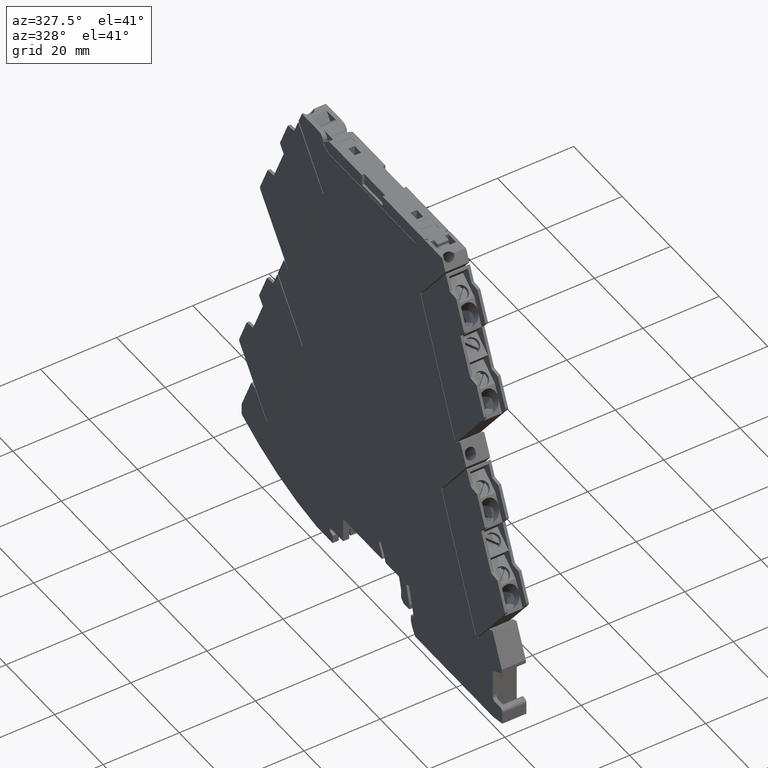
[diagram: clean part render]
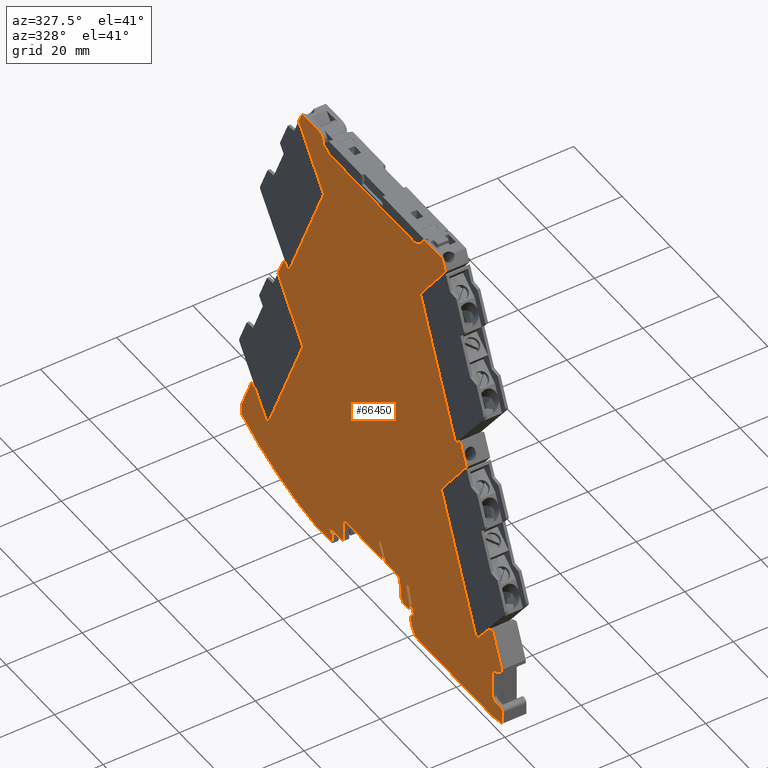
[diagram: same view with one face highlighted and labeled with its STEP entity id]
A machine part, auxiliary view. The second image highlights one B-rep face of the part: STEP entity #66450.
In plain terms, the highlighted planar face has unit normal (-1, -0, 0).
Its self-contained STEP definition (entity closure, byte-faithful):
#60400=CARTESIAN_POINT('',(-25.3383086227346,48.277169045282,
-14.7000000000047));
#60410=DIRECTION('',(-6.05765437811101E-15,0.,-1.));
#60420=DIRECTION('',(-1.,0.,6.05765437811101E-15));
#60430=AXIS2_PLACEMENT_3D('',#60400,#60410,#60420);
#60440=PLANE('',#60430);
#60450=CARTESIAN_POINT('',(36.2007235922513,-1.89731703904989E-13,
-14.6999999993497));
#60460=DIRECTION('',(-1.11019769824654E-16,1.,-4.92867996990879E-28));
#60470=VECTOR('',#60460,1.);
#60480=LINE('',#60450,#60470);
#60490=CARTESIAN_POINT('',(36.2007235922513,107.906773132974,
-14.6999999993497));
#60500=VERTEX_POINT('',#60490);
#60510=CARTESIAN_POINT('',(36.2007235920387,108.40000000015,
-14.6999999993497));
#60520=VERTEX_POINT('',#60510);
#60530=EDGE_CURVE('',#60500,#60520,#60480,.T.);
#60540=ORIENTED_EDGE('',*,*,#60530,.T.);
#60550=CARTESIAN_POINT('',(1.15118559201051,87.6709129337051,
-14.6999999996607));
#60560=DIRECTION('',(-0.866025403785962,-0.499999999997362,
-7.68432686309111E-12));
#60570=VECTOR('',#60560,1.);
#60580=LINE('',#60550,#60570);
#60590=CARTESIAN_POINT('',(33.8507235915967,106.55000000001,
-14.6999999993705));
#60600=VERTEX_POINT('',#60590);
#60610=EDGE_CURVE('',#60500,#60600,#60580,.T.);
#60620=ORIENTED_EDGE('',*,*,#60610,.F.);
#60630=CARTESIAN_POINT('',(1.1511855920105,106.550000000109,
-14.6999999996607));
#60640=DIRECTION('',(1.,-3.03140845380314E-12,8.87306795638251E-12));
#60650=VECTOR('',#60640,1.);
#60660=LINE('',#60630,#60650);
#60670=CARTESIAN_POINT('',(-1.84927640837506,106.550000000118,
-14.6999999996873));
#60680=VERTEX_POINT('',#60670);
#60690=EDGE_CURVE('',#60680,#60600,#60660,.T.);
#60700=ORIENTED_EDGE('',*,*,#60690,.T.);
#60710=CARTESIAN_POINT('',(1.1511855920105,104.81768245649,
-14.6999999996607));
#60720=DIRECTION('',(0.86602540378293,-0.500000000002612,
7.68429910748884E-12));
#60730=VECTOR('',#60720,1.);
#60740=LINE('',#60710,#60730);
#60750=CARTESIAN_POINT('',(-4.69927640812043,108.195448267173,
-14.6999999997126));
#60760=VERTEX_POINT('',#60750);
#60770=EDGE_CURVE('',#60760,#60680,#60740,.T.);
#60780=ORIENTED_EDGE('',*,*,#60770,.T.);
#60790=CARTESIAN_POINT('',(-4.69927640844843,-1.94272412430663E-13,
-14.6999999997126));
#60800=DIRECTION('',(3.03146968213903E-12,1.,2.68987533309253E-23));
#60810=VECTOR('',#60800,1.);
#60820=LINE('',#60790,#60810);
#60830=CARTESIAN_POINT('',(-4.69927640811981,108.400000000278,
-14.6999999997126));
#60840=VERTEX_POINT('',#60830);
#60850=EDGE_CURVE('',#60760,#60840,#60820,.T.);
#60860=ORIENTED_EDGE('',*,*,#60850,.F.);
#60870=CARTESIAN_POINT('',(-6.49927640811981,108.400000000268,
-14.6999999997286));
#60880=DIRECTION('',(-8.8791256107606E-12,6.49014673646118E-15,1.));
#60890=DIRECTION('',(-1.,-1.11022236331463E-16,-8.8791256107606E-12));
#60900=AXIS2_PLACEMENT_3D('',#60870,#60880,#60890);
#60910=CIRCLE('',#60900,1.8);
#60920=CARTESIAN_POINT('',(-6.49927640811436,110.200000000268,
-14.6999999997286));
#60930=VERTEX_POINT('',#60920);
#60940=EDGE_CURVE('',#60840,#60930,#60910,.T.);
#60950=ORIENTED_EDGE('',*,*,#60940,.F.);
#60960=CARTESIAN_POINT('',(1.1511855920105,110.199999999996,
-14.6999999996607));
#60970=DIRECTION('',(1.,1.11022302260079E-16,8.87306795638251E-12));
#60980=VECTOR('',#60970,1.);
#60990=LINE('',#60960,#60980);
#61000=CARTESIAN_POINT('',(-12.8970555814496,110.199999999919,
-14.6999999997853));
#61010=VERTEX_POINT('',#61000);
#61020=EDGE_CURVE('',#61010,#60930,#60990,.T.);
#61030=ORIENTED_EDGE('',*,*,#61020,.T.);
#61040=CARTESIAN_POINT('',(-60.8133793021392,-2.00502187135201E-13,
-14.7000000002105));
#61050=DIRECTION('',(0.398749068924771,0.91706007438533,
3.53813722846408E-12));
#61060=VECTOR('',#61050,1.);
#61070=LINE('',#61040,#61060);
#61080=CARTESIAN_POINT('',(-14.2517103911261,107.084507232027,
-14.6999999997974));
#61090=VERTEX_POINT('',#61080);
#61100=EDGE_CURVE('',#61090,#61010,#61070,.T.);
#61110=ORIENTED_EDGE('',*,*,#61100,.T.);
#61120=CARTESIAN_POINT('',(64.9866566975938,1.24160697329902E-14,
-14.6999999990943));
#61130=DIRECTION('',(-0.594822786743645,0.803856860622912,
-5.27789801480947E-12));
#61140=VECTOR('',#61130,1.);
#61150=LINE('',#61120,#61140);
#61160=CARTESIAN_POINT('',(-3.94907750984252,93.1612979860632,
-14.6999999997059));
#61170=VERTEX_POINT('',#61160);
#61180=EDGE_CURVE('',#61170,#61090,#61150,.T.);
#61190=ORIENTED_EDGE('',*,*,#61180,.T.);
#61200=CARTESIAN_POINT('',(-22.2813318271359,50.9999995197639,
-14.6999999998689));
#61210=DIRECTION('',(0.398749068924602,0.917060074385404,
3.53810057950121E-12));
#61220=VECTOR('',#61210,1.);
#61230=LINE('',#61200,#61220);
#61240=CARTESIAN_POINT('',(-17.9964898335526,60.8544614448102,
-14.6999999998306));
#61250=VERTEX_POINT('',#61240);
#61260=EDGE_CURVE('',#61250,#61170,#61230,.T.);
#61270=ORIENTED_EDGE('',*,*,#61260,.T.);
#61280=CARTESIAN_POINT('',(0.943563592012233,75.1268151745857,
-14.6999999996625));
#61290=DIRECTION('',(0.798635514844872,0.601815016785445,
7.08632782778937E-12));
#61300=VECTOR('',#61290,1.);
#61310=LINE('',#61280,#61300);
#61320=CARTESIAN_POINT('',(-18.7951253487686,60.2526464262474,
-14.6999999998377));
#61330=VERTEX_POINT('',#61320);
#61340=EDGE_CURVE('',#61330,#61250,#61310,.T.);
#61350=ORIENTED_EDGE('',*,*,#61340,.T.);
#61360=CARTESIAN_POINT('',(27.4383555881092,-1.90704499971024E-13,
-14.6999999994274));
#61370=DIRECTION('',(-0.608761422684226,0.79335334514419,
-5.40160933601868E-12));
#61380=VECTOR('',#61370,1.);
#61390=LINE('',#61360,#61380);
#61400=CARTESIAN_POINT('',(-19.6188566543151,61.3261539817586,
-14.699999999845));
#61410=VERTEX_POINT('',#61400);
#61420=EDGE_CURVE('',#61330,#61410,#61390,.T.);
#61430=ORIENTED_EDGE('',*,*,#61420,.F.);
#61440=CARTESIAN_POINT('',(0.943563592012235,52.8089204484699,
-14.6999999996625));
#61450=DIRECTION('',(0.923879529460593,-0.382683439730116,
8.19766352059228E-12));
#61460=VECTOR('',#61450,1.);
#61470=LINE('',#61440,#61460);
#61480=CARTESIAN_POINT('',(-20.4270229817666,61.6609074427902,
-14.6999999998522));
#61490=VERTEX_POINT('',#61480);
#61500=EDGE_CURVE('',#61490,#61410,#61470,.T.);
#61510=ORIENTED_EDGE('',*,*,#61500,.T.);
#61520=CARTESIAN_POINT('',(-47.2379485891593,-4.30799493391948E-17,
-14.7000000000901));
#61530=DIRECTION('',(0.39874906892458,0.917060074385414,
3.53810057950102E-12));
#61540=VECTOR('',#61530,1.);
#61550=LINE('',#61520,#61540);
#61560=CARTESIAN_POINT('',(-22.8222550002266,56.1522509362226,
-14.6999999998734));
#61570=VERTEX_POINT('',#61560);
#61580=EDGE_CURVE('',#61570,#61490,#61550,.T.);
#61590=ORIENTED_EDGE('',*,*,#61580,.T.);
#61600=CARTESIAN_POINT('',(-22.8222550002266,-1.96284421315771E-13,
-14.6999999998734));
#61610=DIRECTION('',(-3.69141078538322E-41,1.,4.92212777642609E-28));
#61620=VECTOR('',#61610,1.);
#61630=LINE('',#61600,#61620);
#61640=CARTESIAN_POINT('',(-22.8222550002266,56.0447007672601,
-14.6999999998734));
#61650=VERTEX_POINT('',#61640);
#61660=EDGE_CURVE('',#61650,#61570,#61630,.T.);
#61670=ORIENTED_EDGE('',*,*,#61660,.T.);
#61680=CARTESIAN_POINT('',(18.6486420283348,7.27163407851774E-15,
-14.6999999995054));
#61690=DIRECTION('',(-0.594822786743645,0.803856860622912,
-5.27789801480947E-12));
#61700=VECTOR('',#61690,1.);
#61710=LINE('',#61680,#61700);
#61720=CARTESIAN_POINT('',(-12.5490777099876,42.1612984679579,
-14.6999999997823));
#61730=VERTEX_POINT('',#61720);
#61740=EDGE_CURVE('',#61730,#61650,#61710,.T.);
#61750=ORIENTED_EDGE('',*,*,#61740,.T.);
#61760=CARTESIAN_POINT('',(-30.881332028242,1.77282783227625E-15,
-14.6999999999449));
#61770=DIRECTION('',(0.398749068924602,0.917060074385404,
3.53810057950121E-12));
#61780=VECTOR('',#61770,1.);
#61790=LINE('',#61760,#61780);
#61800=CARTESIAN_POINT('',(-26.5964900346587,9.85446192504636,
-14.6999999999069));
#61810=VERTEX_POINT('',#61800);
#61820=EDGE_CURVE('',#61810,#61730,#61790,.T.);
#61830=ORIENTED_EDGE('',*,*,#61820,.T.);
#61840=CARTESIAN_POINT('',(0.943563592012237,30.6073805311242,
-14.6999999996625));
#61850=DIRECTION('',(0.798635514844872,0.601815016785445,
7.08632782778937E-12));
#61860=VECTOR('',#61850,1.);
#61870=LINE('',#61840,#61860);
#61880=CARTESIAN_POINT('',(-27.3951255491828,9.25264690850264,
-14.699999999914));
#61890=VERTEX_POINT('',#61880);
#61900=EDGE_CURVE('',#61890,#61810,#61870,.T.);
#61910=ORIENTED_EDGE('',*,*,#61900,.T.);
#61920=CARTESIAN_POINT('',(-20.2953199832388,-1.96003881575544E-13,
-14.699999999851));
#61930=DIRECTION('',(-0.608761422684226,0.79335334514419,
-5.40160933601868E-12));
#61940=VECTOR('',#61930,1.);
#61950=LINE('',#61920,#61940);
#61960=CARTESIAN_POINT('',(-32.099129865832,15.3830247891033,
-14.6999999999557));
#61970=VERTEX_POINT('',#61960);
#61980=EDGE_CURVE('',#61890,#61970,#61950,.T.);
#61990=ORIENTED_EDGE('',*,*,#61980,.F.);
#62000=CARTESIAN_POINT('',(0.94356359201224,1.69629271292179,
-14.6999999996625));
#62010=DIRECTION('',(0.923879529460592,-0.382683439730119,
8.19763576501666E-12));
#62020=VECTOR('',#62010,1.);
#62030=LINE('',#62000,#62020);
#62040=CARTESIAN_POINT('',(-33.7154625217472,16.0525317115858,
-14.6999999999701));
#62050=VERTEX_POINT('',#62040);
#62060=EDGE_CURVE('',#62050,#61970,#62030,.T.);
#62070=ORIENTED_EDGE('',*,*,#62060,.T.);
#62080=CARTESIAN_POINT('',(-40.6953019802847,6.83283161587036E-16,
-14.700000000032));
#62090=DIRECTION('',(0.398749069928776,0.917060073948777,
3.5381005884174E-12));
#62100=VECTOR('',#62090,1.);
#62110=LINE('',#62080,#62100);
#62120=CARTESIAN_POINT('',(-37.4826881751927,7.38850589467894,
-14.7000000000035));
#62130=VERTEX_POINT('',#62120);
#62140=EDGE_CURVE('',#62130,#62050,#62110,.T.);
#62150=ORIENTED_EDGE('',*,*,#62140,.T.);
#62160=CARTESIAN_POINT('',(-37.4826881751927,-1.97912019210795E-13,
-14.7000000000035));
#62170=DIRECTION('',(-3.69141078538322E-41,1.,4.92212777642609E-28));
#62180=VECTOR('',#62170,1.);
#62190=LINE('',#62160,#62180);
#62200=CARTESIAN_POINT('',(-37.4826881751927,6.44608521200861,
-14.7000000000035));
#62210=VERTEX_POINT('',#62200);
#62220=EDGE_CURVE('',#62210,#62130,#62190,.T.);
#62230=ORIENTED_EDGE('',*,*,#62220,.T.);
#62240=CARTESIAN_POINT('',(0.943563592012242,-15.7393215897355,
-14.6999999996625));
#62250=DIRECTION('',(-0.866025403784439,0.5,-7.68427478294475E-12));
#62260=VECTOR('',#62250,1.);
#62270=LINE('',#62240,#62260);
#62280=CARTESIAN_POINT('',(-33.7492764080437,4.29059892324941,
-14.6999999999704));
#62290=VERTEX_POINT('',#62280);
#62300=EDGE_CURVE('',#62290,#62210,#62270,.T.);
#62310=ORIENTED_EDGE('',*,*,#62300,.T.);
#62320=CARTESIAN_POINT('',(-33.7492764080437,1.45442931158427E-15,
-14.6999999999704));
#62330=DIRECTION('',(-1.11022302459215E-16,1.,-4.92890469345861E-28));
#62340=VECTOR('',#62330,1.);
#62350=LINE('',#62320,#62340);
#62360=CARTESIAN_POINT('',(-33.7492764080437,-3.05673846836056,
-14.6999999999704));
#62370=VERTEX_POINT('',#62360);
#62380=EDGE_CURVE('',#62370,#62290,#62350,.T.);
#62390=ORIENTED_EDGE('',*,*,#62380,.T.);
#62400=CARTESIAN_POINT('',(-34.7492764080437,-3.05673846836056,
-14.6999999999792));
#62410=DIRECTION('',(8.87912561076062E-12,-6.5458857184369E-15,-1.));
#62420=DIRECTION('',(1.11022302401093E-16,-1.,6.54588571843789E-15));
#62430=AXIS2_PLACEMENT_3D('',#62400,#62410,#62420);
#62440=CIRCLE('',#62430,1.);
#62450=CARTESIAN_POINT('',(-34.7492764080437,-4.05673846836056,
-14.6999999999792));
#62460=VERTEX_POINT('',#62450);
#62470=EDGE_CURVE('',#62370,#62460,#62440,.T.);
#62480=ORIENTED_EDGE('',*,*,#62470,.F.);
#62490=CARTESIAN_POINT('',(0.943563592012241,-4.05673846836056,
-14.6999999996625));
#62500=DIRECTION('',(1.,1.11022302459176E-16,8.87306795638251E-12));
#62510=VECTOR('',#62500,1.);
#62520=LINE('',#62490,#62510);
#62530=CARTESIAN_POINT('',(-36.7492764080437,-4.05673846836056,
-14.699999999997));
#62540=VERTEX_POINT('',#62530);
#62550=EDGE_CURVE('',#62540,#62460,#62520,.T.);
#62560=ORIENTED_EDGE('',*,*,#62550,.T.);
#62570=CARTESIAN_POINT('',(-36.7492764080437,-5.05673846836056,
-14.699999999997));
#62580=DIRECTION('',(8.87912561076062E-12,-6.5458857184369E-15,-1.));
#62590=DIRECTION('',(-1.,-1.11022302459215E-16,-8.87912561076062E-12));
#62600=AXIS2_PLACEMENT_3D('',#62570,#62580,#62590);
#62610=CIRCLE('',#62600,1.);
#62620=CARTESIAN_POINT('',(-37.7492764080437,-5.05673846836056,
-14.7000000000059));
#62630=VERTEX_POINT('',#62620);
#62640=EDGE_CURVE('',#62630,#62540,#62610,.T.);
#62650=ORIENTED_EDGE('',*,*,#62640,.T.);
#62660=CARTESIAN_POINT('',(-37.7492764080437,1.01035023817628E-15,
-14.7000000000059));
#62670=DIRECTION('',(-5.55111512279573E-17,1.,-3.35882182301169E-31));
#62680=VECTOR('',#62670,1.);
#62690=LINE('',#62660,#62680);
#62700=CARTESIAN_POINT('',(-37.7492764080438,-8.19999999999219,
-14.7000000000059));
#62710=VERTEX_POINT('',#62700);
#62720=EDGE_CURVE('',#62710,#62630,#62690,.T.);
#62730=ORIENTED_EDGE('',*,*,#62720,.T.);
#62740=CARTESIAN_POINT('',(0.943563592012242,-16.3458610526358,
-14.6999999996625));
#62750=DIRECTION('',(-0.978549784986748,0.206010481049847,
-8.6827406418862E-12));
#62760=VECTOR('',#62750,1.);
#62770=LINE('',#62740,#62760);
#62780=CARTESIAN_POINT('',(-33.9492764080469,-8.99999999999157,
-14.6999999999721));
#62790=VERTEX_POINT('',#62780);
#62800=EDGE_CURVE('',#62790,#62710,#62770,.T.);
#62810=ORIENTED_EDGE('',*,*,#62800,.T.);
#62820=CARTESIAN_POINT('',(0.943563592012242,-8.99999999999158,
-14.6999999996625));
#62830=DIRECTION('',(-1.,-5.38540795371444E-26,-8.87306795638251E-12));
#62840=VECTOR('',#62830,1.);
#62850=LINE('',#62820,#62840);
#62860=CARTESIAN_POINT('',(-1.8164198256342,-8.99999999999158,
-14.6999999996869));
#62870=VERTEX_POINT('',#62860);
#62880=EDGE_CURVE('',#62870,#62790,#62850,.T.);
#62890=ORIENTED_EDGE('',*,*,#62880,.T.);
#62900=CARTESIAN_POINT('',(-9.09927640804742,-2.89999999999157,
-14.6999999997516));
#62910=DIRECTION('',(-8.87912561076062E-12,6.5458857184369E-15,1.));
#62920=DIRECTION('',(1.,-3.30054472363818E-27,8.87912561076062E-12));
#62930=AXIS2_PLACEMENT_3D('',#62900,#62910,#62920);
#62940=CIRCLE('',#62930,9.49999999999998);
#62950=CARTESIAN_POINT('',(0.000723591952494024,-5.62763633938898,
-14.6999999996708));
#62960=VERTEX_POINT('',#62950);
#62970=EDGE_CURVE('',#62870,#62960,#62940,.T.);
#62980=ORIENTED_EDGE('',*,*,#62970,.F.);
#62990=CARTESIAN_POINT('',(0.000723591952495134,5.20134649346369E-15,
-14.6999999996709));
#63000=DIRECTION('',(5.55111512279573E-17,-1.,3.35882182301258E-31));
#63010=VECTOR('',#63000,1.);
#63020=LINE('',#62990,#63010);
#63030=CARTESIAN_POINT('',(0.000723591952495356,-4.01794919242248,
-14.6999999996709));
#63040=VERTEX_POINT('',#63030);
#63050=EDGE_CURVE('',#63040,#62960,#63020,.T.);
#63060=ORIENTED_EDGE('',*,*,#63050,.T.);
#63070=CARTESIAN_POINT('',(0.943563592012241,-4.27058240903025,
-14.6999999996625));
#63080=DIRECTION('',(0.965925826289068,-0.25881904510252,
8.57073419363129E-12));
#63090=VECTOR('',#63080,1.);
#63100=LINE('',#63070,#63090);
#63110=CARTESIAN_POINT('',(-0.999276408047306,-3.74999999999141,
-14.6999999996798));
#63120=VERTEX_POINT('',#63110);
#63130=EDGE_CURVE('',#63120,#63040,#63100,.T.);
#63140=ORIENTED_EDGE('',*,*,#63130,.T.);
#63150=CARTESIAN_POINT('',(-0.999276408047306,5.09032672511172E-15,
-14.6999999996798));
#63160=DIRECTION('',(1.11022302459215E-16,-1.,4.92890469345861E-28));
#63170=VECTOR('',#63160,1.);
#63180=LINE('',#63150,#63170);
#63190=CARTESIAN_POINT('',(-0.999276408047306,-2.79999999999159,
-14.6999999996798));
#63200=VERTEX_POINT('',#63190);
#63210=EDGE_CURVE('',#63200,#63120,#63180,.T.);
#63220=ORIENTED_EDGE('',*,*,#63210,.T.);
#63230=CARTESIAN_POINT('',(-0.287005759605487,5.16940284750564E-15,
-14.6999999996735));
#63240=DIRECTION('',(-0.246530848359328,-0.969134944580594,
-2.1874656906388E-12));
#63250=VECTOR('',#63240,1.);
#63260=LINE('',#63230,#63250);
#63270=CARTESIAN_POINT('',(0.605938711461556,3.51024505144192,
-14.6999999996655));
#63280=VERTEX_POINT('',#63270);
#63290=EDGE_CURVE('',#63280,#63200,#63260,.T.);
#63300=ORIENTED_EDGE('',*,*,#63290,.T.);
#63310=CARTESIAN_POINT('',(1.23587642543894,3.35000000000835,
-14.6999999996599));
#63320=DIRECTION('',(8.87912561076062E-12,-6.5458857184369E-15,-1.));
#63330=DIRECTION('',(-1.,-1.11022302459215E-16,-8.87912561076062E-12));
#63340=AXIS2_PLACEMENT_3D('',#63310,#63320,#63330);
#63350=CIRCLE('',#63340,0.65);
#63360=CARTESIAN_POINT('',(1.86337090583075,3.18043975384843,
-14.6999999996544));
#63370=VERTEX_POINT('',#63360);
#63380=EDGE_CURVE('',#63280,#63370,#63350,.T.);
#63390=ORIENTED_EDGE('',*,*,#63380,.F.);
#63400=CARTESIAN_POINT('',(1.00395912706452,5.31272547017431E-15,
-14.699999999662));
#63410=DIRECTION('',(0.260861917169191,0.965376123679685,
2.31461590622338E-12));
#63420=VECTOR('',#63410,1.);
#63430=LINE('',#63400,#63420);
#63440=CARTESIAN_POINT('',(0.600723591952492,-1.49226058767279,
-14.6999999996656));
#63450=VERTEX_POINT('',#63440);
#63460=EDGE_CURVE('',#63450,#63370,#63430,.T.);
#63470=ORIENTED_EDGE('',*,*,#63460,.T.);
#63480=CARTESIAN_POINT('',(0.600723591952492,5.26795835447488E-15,
-14.6999999996656));
#63490=DIRECTION('',(-1.11022302459215E-16,1.,-4.92890469345861E-28));
#63500=VECTOR('',#63490,1.);
#63510=LINE('',#63480,#63500);
#63520=CARTESIAN_POINT('',(0.600723591952493,-2.7999999999916,
-14.6999999996656));
#63530=VERTEX_POINT('',#63520);
#63540=EDGE_CURVE('',#63530,#63450,#63510,.T.);
#63550=ORIENTED_EDGE('',*,*,#63540,.T.);
#63560=CARTESIAN_POINT('',(0.943563592012241,-2.7999999999916,
-14.6999999996625));
#63570=DIRECTION('',(-1.,-1.11022302459176E-16,-8.87306795638251E-12));
#63580=VECTOR('',#63570,1.);
#63590=LINE('',#63560,#63580);
#63600=CARTESIAN_POINT('',(3.00072359195798,-2.7999999999916,
-14.6999999996443));
#63610=VERTEX_POINT('',#63600);
#63620=EDGE_CURVE('',#63610,#63530,#63590,.T.);
#63630=ORIENTED_EDGE('',*,*,#63620,.T.);
#63640=CARTESIAN_POINT('',(0.943563592012241,-4.85715999993733,
-14.6999999996625));
#63650=DIRECTION('',(-0.707106781186548,-0.707106781186547,
-6.27413230500433E-12));
#63660=VECTOR('',#63650,1.);
#63670=LINE('',#63640,#63660);
#63680=CARTESIAN_POINT('',(4.00072359195759,-1.79999999999198,
-14.6999999996354));
#63690=VERTEX_POINT('',#63680);
#63700=EDGE_CURVE('',#63690,#63610,#63670,.T.);
#63710=ORIENTED_EDGE('',*,*,#63700,.T.);
#63720=CARTESIAN_POINT('',(4.00072359195759,5.64542556687223E-15,
-14.6999999996354));
#63730=DIRECTION('',(1.11022302459215E-16,-1.,4.92890469345861E-28));
#63740=VECTOR('',#63730,1.);
#63750=LINE('',#63720,#63740);
#63760=CARTESIAN_POINT('',(4.00072359195759,0.400000000008001,
-14.6999999996354));
#63770=VERTEX_POINT('',#63760);
#63780=EDGE_CURVE('',#63770,#63690,#63750,.T.);
#63790=ORIENTED_EDGE('',*,*,#63780,.T.);
#63800=CARTESIAN_POINT('',(3.89263642850876,5.63342575502431E-15,
-14.6999999996364));
#63810=DIRECTION('',(-0.260861917169192,-0.965376123679685,
-2.31461590622339E-12));
#63820=VECTOR('',#63810,1.);
#63830=LINE('',#63800,#63820);
#63840=CARTESIAN_POINT('',(4.89244269039266,3.7000000000082,
-14.6999999996275));
#63850=VERTEX_POINT('',#63840);
#63860=EDGE_CURVE('',#63850,#63770,#63830,.T.);
#63870=ORIENTED_EDGE('',*,*,#63860,.T.);
#63880=CARTESIAN_POINT('',(0.94356359201224,3.7000000000082,
-14.6999999996625));
#63890=DIRECTION('',(-1.,-1.11022302459176E-16,-8.87306795638251E-12));
#63900=VECTOR('',#63890,1.);
#63910=LINE('',#63880,#63900);
#63920=CARTESIAN_POINT('',(10.3870912508479,3.7000000000082,
-14.700000001461));
#63930=VERTEX_POINT('',#63920);
#63940=EDGE_CURVE('',#63930,#63850,#63910,.T.);
#63950=ORIENTED_EDGE('',*,*,#63940,.T.);
#63960=CARTESIAN_POINT('',(33.5007235919578,-3.79999999985617,
-14.6999999993737));
#63970=DIRECTION('',(-8.87912561076062E-12,6.49014673646192E-15,1.));
#63980=DIRECTION('',(1.,1.11022302459215E-16,8.87912561076062E-12));
#63990=AXIS2_PLACEMENT_3D('',#63960,#63970,#63980);
#64000=CIRCLE('',#63990,24.3);
#64010=CARTESIAN_POINT('',(12.5143589710902,8.45000000014382,
-14.6999999995599));
#64020=VERTEX_POINT('',#64010);
#64030=EDGE_CURVE('',#64020,#63930,#64000,.T.);
#64040=ORIENTED_EDGE('',*,*,#64030,.T.);
#64050=CARTESIAN_POINT('',(1.15118559201051,8.45000000014382,
-14.6999999996607));
#64060=DIRECTION('',(1.,1.11022302459169E-16,8.87306795638251E-12));
#64070=VECTOR('',#64060,1.);
#64080=LINE('',#64050,#64070);
#64090=CARTESIAN_POINT('',(13.0907235919556,8.45000000014382,
-14.6999999995548));
#64100=VERTEX_POINT('',#64090);
#64110=EDGE_CURVE('',#64020,#64100,#64080,.T.);
#64120=ORIENTED_EDGE('',*,*,#64110,.F.);
#64130=CARTESIAN_POINT('',(13.0907235919556,-1.92297370751636E-13,
-14.6999999995548));
#64140=DIRECTION('',(1.11022302459215E-16,-1.,4.92890468966618E-28));
#64150=VECTOR('',#64140,1.);
#64160=LINE('',#64130,#64150);
#64170=CARTESIAN_POINT('',(13.0907235919556,7.43930157986452,
-14.699999999555));
#64180=VERTEX_POINT('',#64170);
#64190=EDGE_CURVE('',#64100,#64180,#64160,.T.);
#64200=ORIENTED_EDGE('',*,*,#64190,.F.);
#64210=CARTESIAN_POINT('',(33.5007235919578,-3.79999999985617,
-14.6999999993737));
#64220=DIRECTION('',(-8.87912561076062E-12,6.49014673646192E-15,1.));
#64230=DIRECTION('',(1.,1.11022302459215E-16,8.87912561076062E-12));
#64240=AXIS2_PLACEMENT_3D('',#64210,#64220,#64230);
#64250=CIRCLE('',#64240,23.3);
#64260=CARTESIAN_POINT('',(11.6821030178929,4.37543859663468,
-14.6999999995673));
#64270=VERTEX_POINT('',#64260);
#64280=EDGE_CURVE('',#64180,#64270,#64250,.T.);
#64290=ORIENTED_EDGE('',*,*,#64280,.F.);
#64300=CARTESIAN_POINT('',(12.1503137598256,4.20000000014346,
-14.6999999995631));
#64310=DIRECTION('',(-8.87912561076062E-12,6.49014673646192E-15,1.));
#64320=DIRECTION('',(1.,1.11022302459215E-16,8.87912561076062E-12));
#64330=AXIS2_PLACEMENT_3D('',#64300,#64310,#64320);
#64340=CIRCLE('',#64330,0.5);
#64350=CARTESIAN_POINT('',(12.1503137598256,3.70000000014346,
-14.7000000014454));
#64360=VERTEX_POINT('',#64350);
#64370=EDGE_CURVE('',#64270,#64360,#64340,.T.);
#64380=ORIENTED_EDGE('',*,*,#64370,.F.);
#64390=CARTESIAN_POINT('',(1.15118559201052,3.7000000000082,
-14.700000001543));
#64400=DIRECTION('',(1.,1.11022302459213E-16,8.87912561076062E-12));
#64410=VECTOR('',#64400,1.);
#64420=LINE('',#64390,#64410);
#64430=CARTESIAN_POINT('',(27.9007235919565,3.7000000000082,
-14.6999999994233));
#64440=VERTEX_POINT('',#64430);
#64450=EDGE_CURVE('',#64360,#64440,#64420,.T.);
#64460=ORIENTED_EDGE('',*,*,#64450,.F.);
#64470=CARTESIAN_POINT('',(27.9007235919565,8.29879803048479E-15,
-14.6999999994233));
#64480=DIRECTION('',(-1.11022302459215E-16,1.,-4.92890469345861E-28));
#64490=VECTOR('',#64480,1.);
#64500=LINE('',#64470,#64490);
#64510=CARTESIAN_POINT('',(27.9007235919565,-2.7999999999916,
-14.6999999994233));
#64520=VERTEX_POINT('',#64510);
#64530=EDGE_CURVE('',#64520,#64440,#64500,.T.);
#64540=ORIENTED_EDGE('',*,*,#64530,.T.);
#64550=CARTESIAN_POINT('',(0.943563592012241,-2.7999999999916,
-14.6999999996625));
#64560=DIRECTION('',(-1.,-1.1102230251637E-16,-8.87306795638251E-12));
#64570=VECTOR('',#64560,1.);
#64580=LINE('',#64550,#64570);
#64590=CARTESIAN_POINT('',(33.5007235919562,-2.7999999999916,
-14.6999999993737));
#64600=VERTEX_POINT('',#64590);
#64610=EDGE_CURVE('',#64600,#64520,#64580,.T.);
#64620=ORIENTED_EDGE('',*,*,#64610,.T.);
#64630=CARTESIAN_POINT('',(33.5007235919562,8.92050873325594E-15,
-14.6999999993737));
#64640=DIRECTION('',(-1.11022302459215E-16,1.,-4.92890469345861E-28));
#64650=VECTOR('',#64640,1.);
#64660=LINE('',#64630,#64650);
#64670=CARTESIAN_POINT('',(33.5007235919562,-3.7499999999927,
-14.6999999993737));
#64680=VERTEX_POINT('',#64670);
#64690=EDGE_CURVE('',#64680,#64600,#64660,.T.);
#64700=ORIENTED_EDGE('',*,*,#64690,.T.);
#64710=CARTESIAN_POINT('',(0.943563592012243,-18.9316530357442,
-14.6999999996625));
#64720=DIRECTION('',(0.90630778703665,0.4226182617407,
8.04172507913701E-12));
#64730=VECTOR('',#64720,1.);
#64740=LINE('',#64710,#64730);
#64750=CARTESIAN_POINT('',(32.2007235919562,-4.3561999555942,
-14.6999999993852));
#64760=VERTEX_POINT('',#64750);
#64770=EDGE_CURVE('',#64760,#64680,#64740,.T.);
#64780=ORIENTED_EDGE('',*,*,#64770,.T.);
#64790=CARTESIAN_POINT('',(32.2007235919562,8.77618303439835E-15,
-14.6999999993852));
#64800=DIRECTION('',(-1.11022302459215E-16,1.,-4.92890469345861E-28));
#64810=VECTOR('',#64800,1.);
#64820=LINE('',#64790,#64810);
#64830=CARTESIAN_POINT('',(32.2007235919562,-6.49999999999157,
-14.6999999993852));
#64840=VERTEX_POINT('',#64830);
#64850=EDGE_CURVE('',#64840,#64760,#64820,.T.);
#64860=ORIENTED_EDGE('',*,*,#64850,.T.);
#64870=CARTESIAN_POINT('',(0.943563592012241,-6.49999999999158,
-14.6999999996625));
#64880=DIRECTION('',(-1.,-1.1102230251637E-16,-8.87306795638251E-12));
#64890=VECTOR('',#64880,1.);
#64900=LINE('',#64870,#64890);
#64910=CARTESIAN_POINT('',(38.8654179275983,-6.49999999999157,
-14.6999999993261));
#64920=VERTEX_POINT('',#64910);
#64930=EDGE_CURVE('',#64920,#64840,#64900,.T.);
#64940=ORIENTED_EDGE('',*,*,#64930,.T.);
#64950=CARTESIAN_POINT('',(29.5007235919562,72.9500000000084,
-14.6999999994091));
#64960=DIRECTION('',(-8.87912561076062E-12,6.5458857184369E-15,1.));
#64970=DIRECTION('',(1.,1.11022302459215E-16,8.87912561076062E-12));
#64980=AXIS2_PLACEMENT_3D('',#64950,#64960,#64970);
#64990=CIRCLE('',#64980,80.0000000000001);
#65000=CARTESIAN_POINT('',(69.7507235919569,3.81290792925414,
-14.699999999052));
#65010=VERTEX_POINT('',#65000);
#65020=EDGE_CURVE('',#64920,#65010,#64990,.T.);
#65030=ORIENTED_EDGE('',*,*,#65020,.F.);
#65040=CARTESIAN_POINT('',(69.7507235919569,1.29449753360158E-14,
-14.699999999052));
#65050=DIRECTION('',(1.11022302458579E-16,-1.,4.92890469340215E-28));
#65060=VECTOR('',#65050,1.);
#65070=LINE('',#65040,#65060);
#65080=CARTESIAN_POINT('',(69.7507235919569,6.77539492033612,
-14.699999999052));
#65090=VERTEX_POINT('',#65080);
#65100=EDGE_CURVE('',#65090,#65010,#65070,.T.);
#65110=ORIENTED_EDGE('',*,*,#65100,.T.);
#65120=CARTESIAN_POINT('',(72.6967491485635,1.32720424108694E-14,
-14.6999999990259));
#65130=DIRECTION('',(0.398749068924908,-0.917060074385271,
3.53810057950393E-12));
#65140=VECTOR('',#65130,1.);
#65150=LINE('',#65120,#65140);
#65160=CARTESIAN_POINT('',(65.7169097088167,16.0525317164235,
-14.6999999990878));
#65170=VERTEX_POINT('',#65160);
#65180=EDGE_CURVE('',#65170,#65090,#65150,.T.);
#65190=ORIENTED_EDGE('',*,*,#65180,.T.);
#65200=CARTESIAN_POINT('',(0.943563592012242,-10.7774673304011,
-14.6999999996625));
#65210=DIRECTION('',(0.923879529460591,0.382683439730121,
8.19763576501665E-12));
#65220=VECTOR('',#65210,1.);
#65230=LINE('',#65200,#65220);
#65240=CARTESIAN_POINT('',(64.1005770539132,15.3830247943601,
-14.6999999991021));
#65250=VERTEX_POINT('',#65240);
#65260=EDGE_CURVE('',#65250,#65170,#65230,.T.);
#65270=ORIENTED_EDGE('',*,*,#65260,.T.);
#65280=CARTESIAN_POINT('',(52.2967671672864,-1.87944724875905E-13,
-14.6999999992069));
#65290=DIRECTION('',(-0.608761422684226,-0.793353345144191,
-5.40158158044307E-12));
#65300=VECTOR('',#65290,1.);
#65310=LINE('',#65280,#65300);
#65320=CARTESIAN_POINT('',(59.3965727331644,9.25264690841671,
-14.6999999991439));
#65330=VERTEX_POINT('',#65320);
#65340=EDGE_CURVE('',#65250,#65330,#65310,.T.);
#65350=ORIENTED_EDGE('',*,*,#65340,.F.);
#65360=CARTESIAN_POINT('',(0.943563592012235,53.3001479568458,
-14.6999999996625));
#65370=DIRECTION('',(0.798635514844873,-0.601815016785445,
7.08632782778937E-12));
#65380=VECTOR('',#65370,1.);
#65390=LINE('',#65360,#65380);
#65400=CARTESIAN_POINT('',(58.5979372183868,9.8544619251942,
-14.6999999991503));
#65410=VERTEX_POINT('',#65400);
#65420=EDGE_CURVE('',#65410,#65330,#65390,.T.);
#65430=ORIENTED_EDGE('',*,*,#65420,.T.);
#65440=CARTESIAN_POINT('',(62.8827792119701,1.47837038900938E-10,
-14.6999999991122));
#65450=DIRECTION('',(-0.398749068924602,0.917060074385404,
-3.54298556080956E-12));
#65460=VECTOR('',#65450,1.);
#65470=LINE('',#65440,#65460);
#65480=CARTESIAN_POINT('',(44.5505248937157,42.1612984681058,
-14.6999999992751));
#65490=VERTEX_POINT('',#65480);
#65500=EDGE_CURVE('',#65410,#65490,#65470,.T.);
#65510=ORIENTED_EDGE('',*,*,#65500,.F.);
#65520=CARTESIAN_POINT('',(13.3528051553933,1.47842537707184E-10,
-14.6999999995523));
#65530=DIRECTION('',(0.594822786743645,0.803856860622912,
5.28511446446954E-12));
#65540=VECTOR('',#65530,1.);
#65550=LINE('',#65520,#65540);
#65560=CARTESIAN_POINT('',(54.8237021839289,56.0447007673731,
-14.6999999991838));
#65570=VERTEX_POINT('',#65560);
#65580=EDGE_CURVE('',#65490,#65570,#65550,.T.);
#65590=ORIENTED_EDGE('',*,*,#65580,.F.);
#65600=CARTESIAN_POINT('',(54.8237021839289,-1.87664185135717E-13,
-14.6999999991845));
#65610=DIRECTION('',(3.69141078538322E-41,-1.,-4.92212777642609E-28));
#65620=VECTOR('',#65610,1.);
#65630=LINE('',#65600,#65620);
#65640=CARTESIAN_POINT('',(54.8237021839289,56.1522509364297,
-14.6999999991838));
#65650=VERTEX_POINT('',#65640);
#65660=EDGE_CURVE('',#65650,#65570,#65630,.T.);
#65670=ORIENTED_EDGE('',*,*,#65660,.T.);
#65680=CARTESIAN_POINT('',(79.2393957728874,1.47835222993156E-10,
-14.6999999989669));
#65690=DIRECTION('',(-0.39874906892458,0.917060074385414,
-3.54298556080936E-12));
#65700=VECTOR('',#65690,1.);
#65710=LINE('',#65680,#65700);
#65720=CARTESIAN_POINT('',(52.4284701654947,61.6609074429381,
-14.6999999992051));
#65730=VERTEX_POINT('',#65720);
#65740=EDGE_CURVE('',#65650,#65730,#65710,.T.);
#65750=ORIENTED_EDGE('',*,*,#65740,.F.);
#65760=CARTESIAN_POINT('',(31.0578835917159,52.8089204486178,
-14.699999999395));
#65770=DIRECTION('',(-0.923879529460593,-0.382683439730116,
-8.20882126198977E-12));
#65780=VECTOR('',#65770,1.);
#65790=LINE('',#65760,#65780);
#65800=CARTESIAN_POINT('',(51.6203038380432,61.3261539819064,
-14.6999999992123));
#65810=VERTEX_POINT('',#65800);
#65820=EDGE_CURVE('',#65730,#65810,#65790,.T.);
#65830=ORIENTED_EDGE('',*,*,#65820,.F.);
#65840=CARTESIAN_POINT('',(4.56309159561891,1.47644561573134E-10,
-14.6999999996304));
#65850=DIRECTION('',(0.608761422684226,0.79335334514419,
5.40892894197849E-12));
#65860=VECTOR('',#65850,1.);
#65870=LINE('',#65840,#65860);
#65880=CARTESIAN_POINT('',(50.7965725324967,60.2526464263952,
-14.6999999992196));
#65890=VERTEX_POINT('',#65880);
#65900=EDGE_CURVE('',#65890,#65810,#65870,.T.);
#65910=ORIENTED_EDGE('',*,*,#65900,.T.);
#65920=CARTESIAN_POINT('',(31.0578835917159,75.1268151747335,
-14.699999999395));
#65930=DIRECTION('',(-0.798635514844873,0.601815016785445,
-7.09604227925484E-12));
#65940=VECTOR('',#65930,1.);
#65950=LINE('',#65920,#65940);
#65960=CARTESIAN_POINT('',(49.9979370172807,60.854461444958,
-14.6999999992267));
#65970=VERTEX_POINT('',#65960);
#65980=EDGE_CURVE('',#65890,#65970,#65950,.T.);
#65990=ORIENTED_EDGE('',*,*,#65980,.F.);
#66000=CARTESIAN_POINT('',(54.282779010864,50.9999995199117,
-14.6999999991889));
#66010=DIRECTION('',(-0.398749068924602,0.917060074385404,
-3.54298556080956E-12));
#66020=VECTOR('',#66010,1.);
#66030=LINE('',#66000,#66020);
#66040=CARTESIAN_POINT('',(35.9505246935707,93.1612979862111,
-14.6999999993519));
#66050=VERTEX_POINT('',#66040);
#66060=EDGE_CURVE('',#65970,#66050,#66030,.T.);
#66070=ORIENTED_EDGE('',*,*,#66060,.F.);
#66080=CARTESIAN_POINT('',(-32.9852095138657,1.47847682142838E-10,
-14.699999999964));
#66090=DIRECTION('',(0.594822786743645,0.803856860622912,
5.28511446446954E-12));
#66100=VECTOR('',#66090,1.);
#66110=LINE('',#66080,#66100);
#66120=CARTESIAN_POINT('',(46.2531575748542,107.084507232175,
-14.6999999992605));
#66130=VERTEX_POINT('',#66120);
#66140=EDGE_CURVE('',#66050,#66130,#66110,.T.);
#66150=ORIENTED_EDGE('',*,*,#66140,.F.);
#66160=CARTESIAN_POINT('',(92.8148264858673,1.4763476388597E-10,
-14.6999999988463));
#66170=DIRECTION('',(-0.398749068924771,0.917060074385331,
-3.54294891184971E-12));
#66180=VECTOR('',#66170,1.);
#66190=LINE('',#66160,#66180);
#66200=CARTESIAN_POINT('',(44.8985027653398,110.199999999919,
-14.6999999992725));
#66210=VERTEX_POINT('',#66200);
#66220=EDGE_CURVE('',#66130,#66210,#66190,.T.);
#66230=ORIENTED_EDGE('',*,*,#66220,.F.);
#66240=CARTESIAN_POINT('',(0.943563592012229,110.199999999996,
-14.6999999996625));
#66250=DIRECTION('',(1.,1.11022302260089E-16,8.87306795638251E-12));
#66260=VECTOR('',#66250,1.);
#66270=LINE('',#66240,#66260);
#66280=CARTESIAN_POINT('',(38.0007235920409,110.199999999919,
-14.7000000258242));
#66290=VERTEX_POINT('',#66280);
#66300=EDGE_CURVE('',#66290,#66210,#66270,.T.);
#66310=ORIENTED_EDGE('',*,*,#66300,.T.);
#66320=CARTESIAN_POINT('',(38.0007235920409,110.20000000015,
-14.6999999993337));
#66330=CARTESIAN_POINT('',(37.6847600700366,110.20000000015,
-14.6999999993365));
#66340=CARTESIAN_POINT('',(37.3743560287659,110.116827487964,
-14.6999999993393));
#66350=CARTESIAN_POINT('',(36.827091155316,109.80086396596,
-14.6999999993441));
#66360=CARTESIAN_POINT('',(36.5998596262311,109.573632436875,
-14.6999999993462));
#66370=CARTESIAN_POINT('',(36.2838961042268,109.026367563425,
-14.699999999349));
#66380=CARTESIAN_POINT('',(36.2007235920409,108.715963522154,
-14.6999999993497));
#66390=CARTESIAN_POINT('',(36.2007235920409,108.40000000015,
-14.6999999993497));
#66400=B_SPLINE_CURVE_WITH_KNOTS('',3,(#66320,#66330,#66340,#66350,
#66360,#66370,#66380,#66390),.UNSPECIFIED.,.F.,.F.,(4,2,2,4),(0.,1.,2.,
3.),.UNSPECIFIED.);
#66410=EDGE_CURVE('',#66290,#60520,#66400,.T.);
#66420=ORIENTED_EDGE('',*,*,#66410,.F.);
#66430=EDGE_LOOP('',(#66420,#66310,#66230,#66150,#66070,#65990,#65910,
#65830,#65750,#65670,#65590,#65510,#65430,#65350,#65270,#65190,#65110,
#65030,#64940,#64860,#64780,#64700,#64620,#64540,#64460,#64380,#64290,
#64200,#64120,#64040,#63950,#63870,#63790,#63710,#63630,#63550,#63470,
#63390,#63300,#63220,#63140,#63060,#62980,#62890,#62810,#62730,#62650,
#62560,#62480,#62390,#62310,#62230,#62150,#62070,#61990,#61910,#61830,
#61750,#61670,#61590,#61510,#61430,#61350,#61270,#61190,#61110,#61030,
#60950,#60860,#60780,#60700,#60620,#60540));
#66440=FACE_OUTER_BOUND('',#66430,.T.);
#66450=ADVANCED_FACE('',(#66440),#60440,.T.);